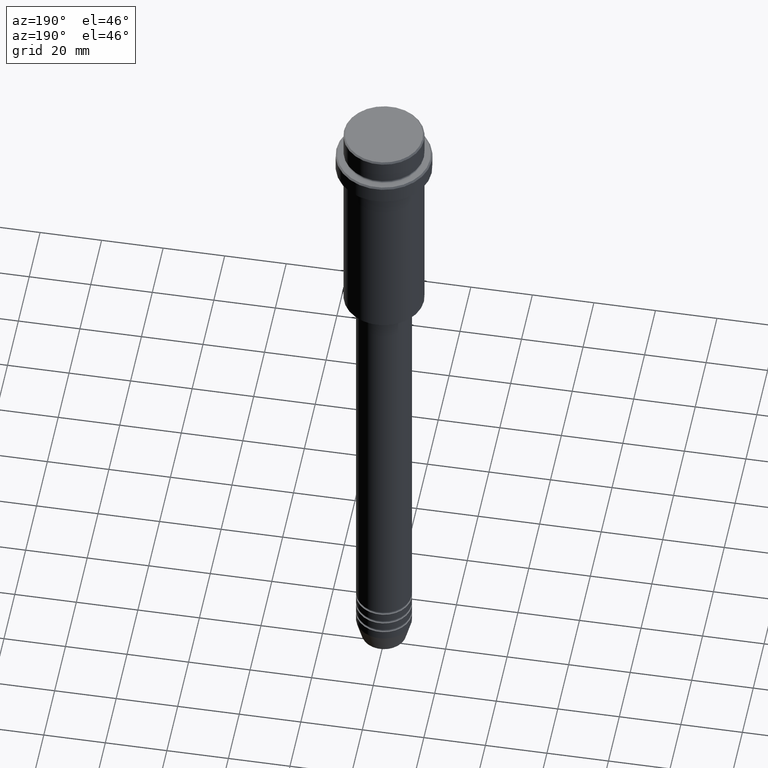
[diagram: clean part render]
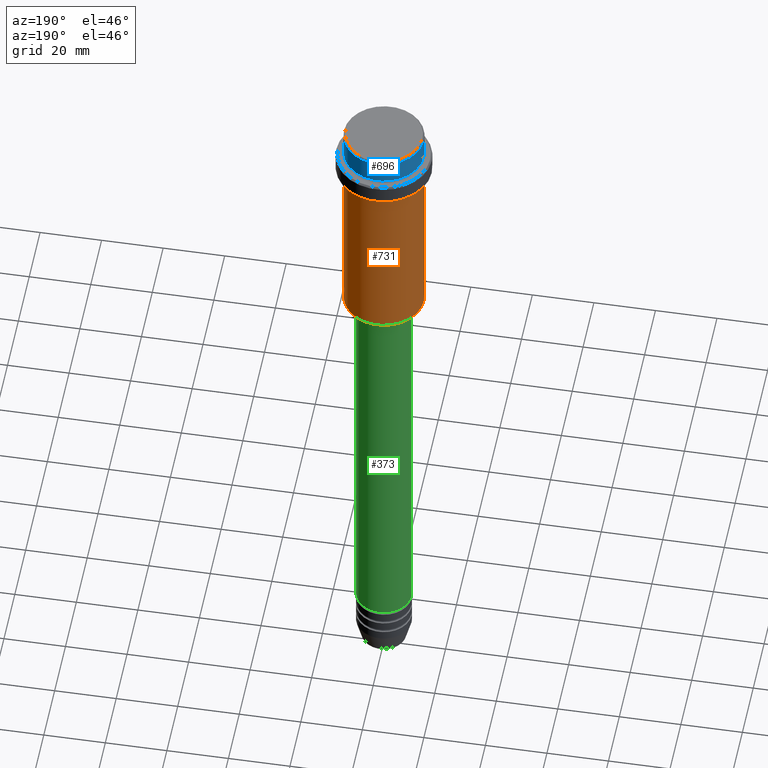
[diagram: same view with three faces highlighted in distinct colors, each labeled with its STEP entity id]
A machine part, auxiliary view with three faces highlighted in distinct colors.
Their STEP definitions:

[orange] entity #731 — the highlighted cylindrical surface (partial cylindrical patch) has radius 13 mm, axis along (-0, -0, 1).
#4 = DIRECTION ( 'NONE',  ( -0.000000000000000000, -0.000000000000000000, 1.000000000000000000 ) ) ;
#97 = CYLINDRICAL_SURFACE ( 'NONE', #539, 13.00000000000000000 ) ;
#190 = VERTEX_POINT ( 'NONE', #1031 ) ;
#195 = CARTESIAN_POINT ( 'NONE',  ( 13.00000000000000000, 0.000000000000000000, -74.50000000000004263 ) ) ;
#249 = CARTESIAN_POINT ( 'NONE',  ( -13.00000000000000000, 1.592040838891559095E-15, -16.00000000000000000 ) ) ;
#271 = VECTOR ( 'NONE', #1165, 1000.000000000000000 ) ;
#310 = DIRECTION ( 'NONE',  ( 1.000000000000000000, 0.000000000000000000, 0.000000000000000000 ) ) ;
#383 = CARTESIAN_POINT ( 'NONE',  ( 0.000000000000000000, 0.000000000000000000, -74.50000000000004263 ) ) ;
#391 = ORIENTED_EDGE ( 'NONE', *, *, #814, .T. ) ;
#399 = VERTEX_POINT ( 'NONE', #889 ) ;
#409 = DIRECTION ( 'NONE',  ( -0.000000000000000000, -0.000000000000000000, 1.000000000000000000 ) ) ;
#466 = DIRECTION ( 'NONE',  ( -1.000000000000000000, 0.000000000000000000, 0.000000000000000000 ) ) ;
#469 = AXIS2_PLACEMENT_3D ( 'NONE', #1287, #409, #310 ) ;
#480 = VERTEX_POINT ( 'NONE', #249 ) ;
#533 = CARTESIAN_POINT ( 'NONE',  ( 0.000000000000000000, 0.000000000000000000, 0.000000000000000000 ) ) ;
#539 = AXIS2_PLACEMENT_3D ( 'NONE', #533, #1072, #1306 ) ;
#544 = ORIENTED_EDGE ( 'NONE', *, *, #984, .T. ) ;
#551 = LINE ( 'NONE', #981, #1223 ) ;
#672 = DIRECTION ( 'NONE',  ( -0.000000000000000000, -0.000000000000000000, 1.000000000000000000 ) ) ;
#731 = ADVANCED_FACE ( 'NONE', ( #1298 ), #97, .T. ) ;
#814 = EDGE_CURVE ( 'NONE', #1020, #399, #899, .T. ) ;
#878 = CIRCLE ( 'NONE', #469, 13.00000000000000000 ) ;
#889 = CARTESIAN_POINT ( 'NONE',  ( -13.00000000000000000, 1.592040838891559095E-15, -74.50000000000004263 ) ) ;
#899 = CIRCLE ( 'NONE', #1185, 13.00000000000000000 ) ;
#956 = LINE ( 'NONE', #1369, #271 ) ;
#966 = EDGE_CURVE ( 'NONE', #190, #480, #878, .T. ) ;
#981 = CARTESIAN_POINT ( 'NONE',  ( 13.00000000000000000, 0.000000000000000000, 0.000000000000000000 ) ) ;
#984 = EDGE_CURVE ( 'NONE', #399, #480, #956, .T. ) ;
#1020 = VERTEX_POINT ( 'NONE', #195 ) ;
#1031 = CARTESIAN_POINT ( 'NONE',  ( 13.00000000000000000, 0.000000000000000000, -16.00000000000000000 ) ) ;
#1072 = DIRECTION ( 'NONE',  ( -0.000000000000000000, -0.000000000000000000, 1.000000000000000000 ) ) ;
#1121 = ORIENTED_EDGE ( 'NONE', *, *, #1294, .F. ) ;
#1134 = EDGE_LOOP ( 'NONE', ( #391, #544, #1187, #1121 ) ) ;
#1165 = DIRECTION ( 'NONE',  ( -0.000000000000000000, -0.000000000000000000, 1.000000000000000000 ) ) ;
#1185 = AXIS2_PLACEMENT_3D ( 'NONE', #383, #672, #466 ) ;
#1187 = ORIENTED_EDGE ( 'NONE', *, *, #966, .F. ) ;
#1223 = VECTOR ( 'NONE', #4, 1000.000000000000000 ) ;
#1287 = CARTESIAN_POINT ( 'NONE',  ( 0.000000000000000000, 0.000000000000000000, -16.00000000000000000 ) ) ;
#1294 = EDGE_CURVE ( 'NONE', #1020, #190, #551, .T. ) ;
#1298 = FACE_OUTER_BOUND ( 'NONE', #1134, .T. ) ;
#1306 = DIRECTION ( 'NONE',  ( 1.000000000000000000, 0.000000000000000000, 0.000000000000000000 ) ) ;
#1369 = CARTESIAN_POINT ( 'NONE',  ( -13.00000000000000000, 1.592040838891559095E-15, 0.000000000000000000 ) ) ;

[blue] entity #696 — the highlighted cylindrical surface (partial cylindrical patch) has radius 13 mm, axis along (-0, -0, 1).
#19 = LINE ( 'NONE', #461, #610 ) ;
#37 = EDGE_LOOP ( 'NONE', ( #968, #483, #625, #381 ) ) ;
#60 = VERTEX_POINT ( 'NONE', #457 ) ;
#99 = DIRECTION ( 'NONE',  ( 0.000000000000000000, 0.000000000000000000, -1.000000000000000000 ) ) ;
#109 = DIRECTION ( 'NONE',  ( 1.000000000000000000, 0.000000000000000000, 0.000000000000000000 ) ) ;
#177 = CIRCLE ( 'NONE', #1319, 12.99999999999999822 ) ;
#217 = CARTESIAN_POINT ( 'NONE',  ( 12.99999999999999822, 0.000000000000000000, -0.4999999999999483746 ) ) ;
#220 = CARTESIAN_POINT ( 'NONE',  ( 0.000000000000000000, 0.000000000000000000, -0.4999999999999483746 ) ) ;
#272 = AXIS2_PLACEMENT_3D ( 'NONE', #330, #751, #109 ) ;
#322 = DIRECTION ( 'NONE',  ( -0.000000000000000000, -0.000000000000000000, 1.000000000000000000 ) ) ;
#330 = CARTESIAN_POINT ( 'NONE',  ( 0.000000000000000000, 0.000000000000000000, -7.999999999999998224 ) ) ;
#370 = VERTEX_POINT ( 'NONE', #1311 ) ;
#381 = ORIENTED_EDGE ( 'NONE', *, *, #959, .F. ) ;
#457 = CARTESIAN_POINT ( 'NONE',  ( -12.99999999999999822, 1.592040838891558898E-15, -7.999999999999998224 ) ) ;
#461 = CARTESIAN_POINT ( 'NONE',  ( 12.99999999999999822, 0.000000000000000000, 0.000000000000000000 ) ) ;
#483 = ORIENTED_EDGE ( 'NONE', *, *, #1355, .T. ) ;
#610 = VECTOR ( 'NONE', #1280, 1000.000000000000000 ) ;
#620 = CARTESIAN_POINT ( 'NONE',  ( 0.000000000000000000, 0.000000000000000000, 0.000000000000000000 ) ) ;
#625 = ORIENTED_EDGE ( 'NONE', *, *, #1257, .T. ) ;
#638 = DIRECTION ( 'NONE',  ( 1.000000000000000000, 0.000000000000000000, 0.000000000000000000 ) ) ;
#649 = AXIS2_PLACEMENT_3D ( 'NONE', #620, #322, #749 ) ;
#654 = CARTESIAN_POINT ( 'NONE',  ( 12.99999999999999822, 0.000000000000000000, -7.999999999999998224 ) ) ;
#682 = LINE ( 'NONE', #693, #766 ) ;
#693 = CARTESIAN_POINT ( 'NONE',  ( -12.99999999999999822, 1.592040838891558898E-15, 0.000000000000000000 ) ) ;
#696 = ADVANCED_FACE ( 'NONE', ( #721 ), #1162, .T. ) ;
#719 = VERTEX_POINT ( 'NONE', #217 ) ;
#721 = FACE_OUTER_BOUND ( 'NONE', #37, .T. ) ;
#749 = DIRECTION ( 'NONE',  ( 1.000000000000000000, 0.000000000000000000, 0.000000000000000000 ) ) ;
#751 = DIRECTION ( 'NONE',  ( -0.000000000000000000, -0.000000000000000000, 1.000000000000000000 ) ) ;
#766 = VECTOR ( 'NONE', #1350, 1000.000000000000000 ) ;
#959 = EDGE_CURVE ( 'NONE', #1272, #719, #19, .T. ) ;
#968 = ORIENTED_EDGE ( 'NONE', *, *, #1159, .T. ) ;
#1159 = EDGE_CURVE ( 'NONE', #1272, #60, #1411, .T. ) ;
#1162 = CYLINDRICAL_SURFACE ( 'NONE', #649, 12.99999999999999822 ) ;
#1257 = EDGE_CURVE ( 'NONE', #370, #719, #177, .T. ) ;
#1272 = VERTEX_POINT ( 'NONE', #654 ) ;
#1280 = DIRECTION ( 'NONE',  ( -0.000000000000000000, -0.000000000000000000, 1.000000000000000000 ) ) ;
#1311 = CARTESIAN_POINT ( 'NONE',  ( -12.99999999999999822, 1.592040838891558898E-15, -0.4999999999999483746 ) ) ;
#1319 = AXIS2_PLACEMENT_3D ( 'NONE', #220, #99, #638 ) ;
#1350 = DIRECTION ( 'NONE',  ( -0.000000000000000000, -0.000000000000000000, 1.000000000000000000 ) ) ;
#1355 = EDGE_CURVE ( 'NONE', #60, #370, #682, .T. ) ;
#1411 = CIRCLE ( 'NONE', #272, 12.99999999999999822 ) ;

[green] entity #373 — the highlighted cylindrical surface (edge-blend (fillet) strip) has radius 9 mm, axis along (-0, -0, 1).
#7 = DIRECTION ( 'NONE',  ( 1.000000000000000000, 0.000000000000000000, 0.000000000000000000 ) ) ;
#47 = DIRECTION ( 'NONE',  ( -0.000000000000000000, -0.000000000000000000, 1.000000000000000000 ) ) ;
#147 = CIRCLE ( 'NONE', #380, 9.000000000000001776 ) ;
#159 = EDGE_CURVE ( 'NONE', #1176, #720, #281, .T. ) ;
#224 = CYLINDRICAL_SURFACE ( 'NONE', #1408, 9.000000000000001776 ) ;
#281 = LINE ( 'NONE', #818, #1244 ) ;
#295 = ORIENTED_EDGE ( 'NONE', *, *, #348, .F. ) ;
#332 = DIRECTION ( 'NONE',  ( 1.000000000000000000, 0.000000000000000000, 0.000000000000000000 ) ) ;
#341 = VECTOR ( 'NONE', #47, 1000.000000000000000 ) ;
#348 = EDGE_CURVE ( 'NONE', #720, #1152, #147, .T. ) ;
#373 = ADVANCED_FACE ( 'NONE', ( #760 ), #224, .T. ) ;
#380 = AXIS2_PLACEMENT_3D ( 'NONE', #1198, #971, #332 ) ;
#414 = DIRECTION ( 'NONE',  ( -0.000000000000000000, -0.000000000000000000, 1.000000000000000000 ) ) ;
#459 = CARTESIAN_POINT ( 'NONE',  ( -9.000000000000001776, 1.102182119232617911E-15, 0.000000000000000000 ) ) ;
#462 = CARTESIAN_POINT ( 'NONE',  ( -9.000000000000000000, 1.102182119232617714E-15, -210.9999999999999432 ) ) ;
#472 = ORIENTED_EDGE ( 'NONE', *, *, #159, .F. ) ;
#546 = VERTEX_POINT ( 'NONE', #462 ) ;
#549 = CARTESIAN_POINT ( 'NONE',  ( 0.000000000000000000, 0.000000000000000000, 0.000000000000000000 ) ) ;
#556 = CARTESIAN_POINT ( 'NONE',  ( -9.000000000000001776, 1.102182119232617911E-15, -76.00000000000001421 ) ) ;
#593 = LINE ( 'NONE', #459, #341 ) ;
#621 = DIRECTION ( 'NONE',  ( -0.000000000000000000, -0.000000000000000000, 1.000000000000000000 ) ) ;
#720 = VERTEX_POINT ( 'NONE', #1197 ) ;
#744 = ORIENTED_EDGE ( 'NONE', *, *, #1413, .T. ) ;
#759 = EDGE_CURVE ( 'NONE', #1176, #546, #991, .T. ) ;
#760 = FACE_OUTER_BOUND ( 'NONE', #862, .T. ) ;
#762 = CARTESIAN_POINT ( 'NONE',  ( 9.000000000000000000, 0.000000000000000000, -210.9999999999999432 ) ) ;
#818 = CARTESIAN_POINT ( 'NONE',  ( 9.000000000000001776, 0.000000000000000000, 0.000000000000000000 ) ) ;
#862 = EDGE_LOOP ( 'NONE', ( #1178, #744, #295, #472 ) ) ;
#971 = DIRECTION ( 'NONE',  ( -0.000000000000000000, -0.000000000000000000, 1.000000000000000000 ) ) ;
#991 = CIRCLE ( 'NONE', #1387, 9.000000000000000000 ) ;
#1054 = CARTESIAN_POINT ( 'NONE',  ( 0.000000000000000000, 0.000000000000000000, -210.9999999999999432 ) ) ;
#1152 = VERTEX_POINT ( 'NONE', #556 ) ;
#1176 = VERTEX_POINT ( 'NONE', #762 ) ;
#1178 = ORIENTED_EDGE ( 'NONE', *, *, #759, .T. ) ;
#1192 = DIRECTION ( 'NONE',  ( 1.000000000000000000, 0.000000000000000000, 0.000000000000000000 ) ) ;
#1197 = CARTESIAN_POINT ( 'NONE',  ( 9.000000000000001776, 0.000000000000000000, -76.00000000000001421 ) ) ;
#1198 = CARTESIAN_POINT ( 'NONE',  ( 0.000000000000000000, 0.000000000000000000, -76.00000000000001421 ) ) ;
#1210 = DIRECTION ( 'NONE',  ( -0.000000000000000000, -0.000000000000000000, 1.000000000000000000 ) ) ;
#1244 = VECTOR ( 'NONE', #621, 1000.000000000000000 ) ;
#1387 = AXIS2_PLACEMENT_3D ( 'NONE', #1054, #414, #1192 ) ;
#1408 = AXIS2_PLACEMENT_3D ( 'NONE', #549, #1210, #7 ) ;
#1413 = EDGE_CURVE ( 'NONE', #546, #1152, #593, .T. ) ;